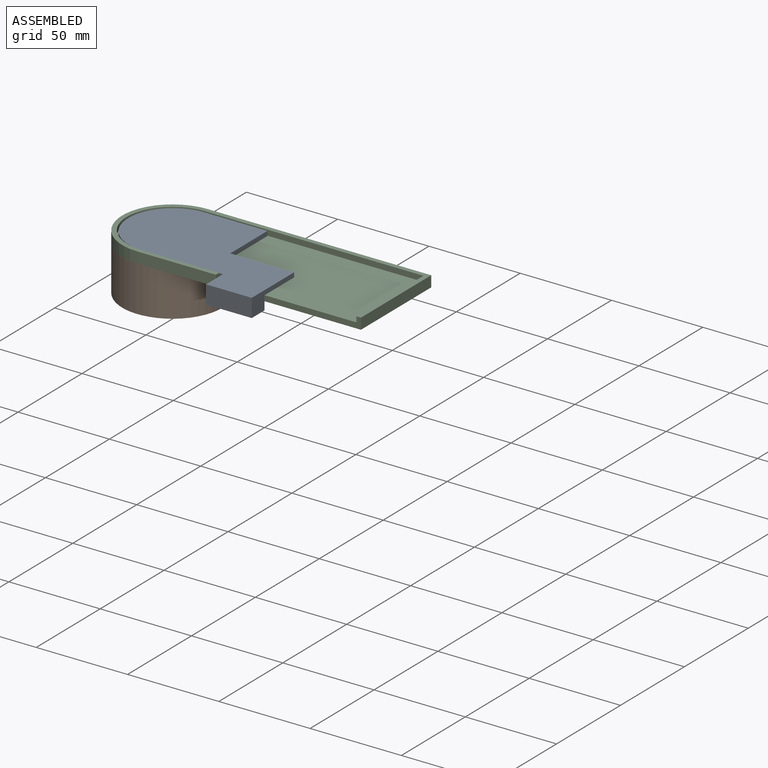
[diagram: assembled view]
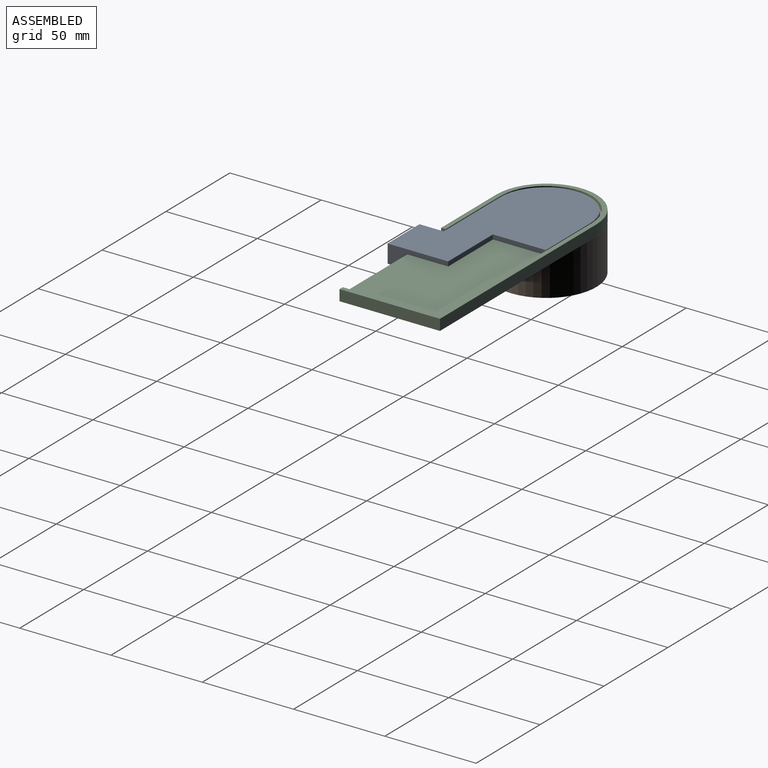
[diagram: assembled view, second angle]
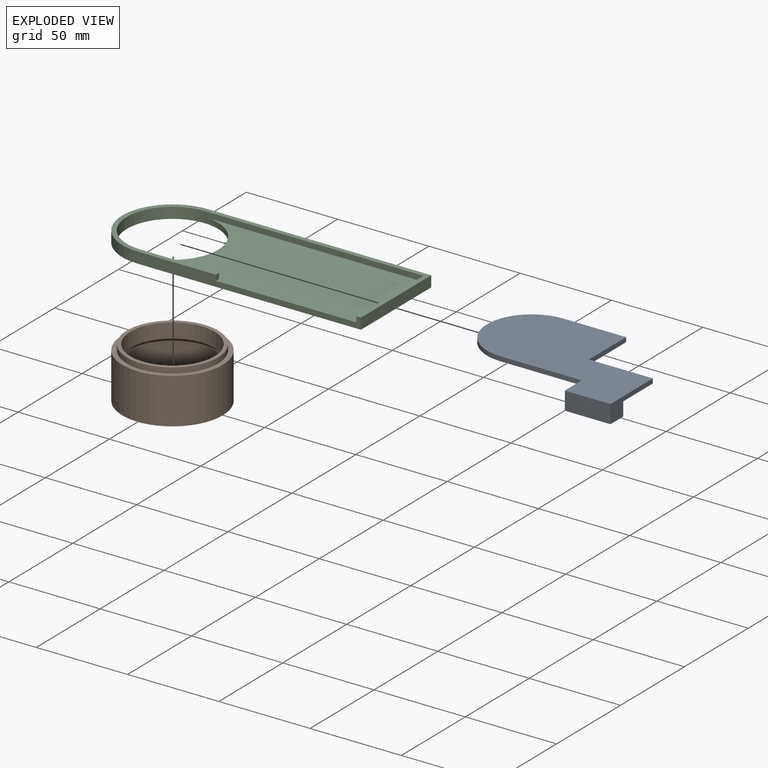
[diagram: exploded view]
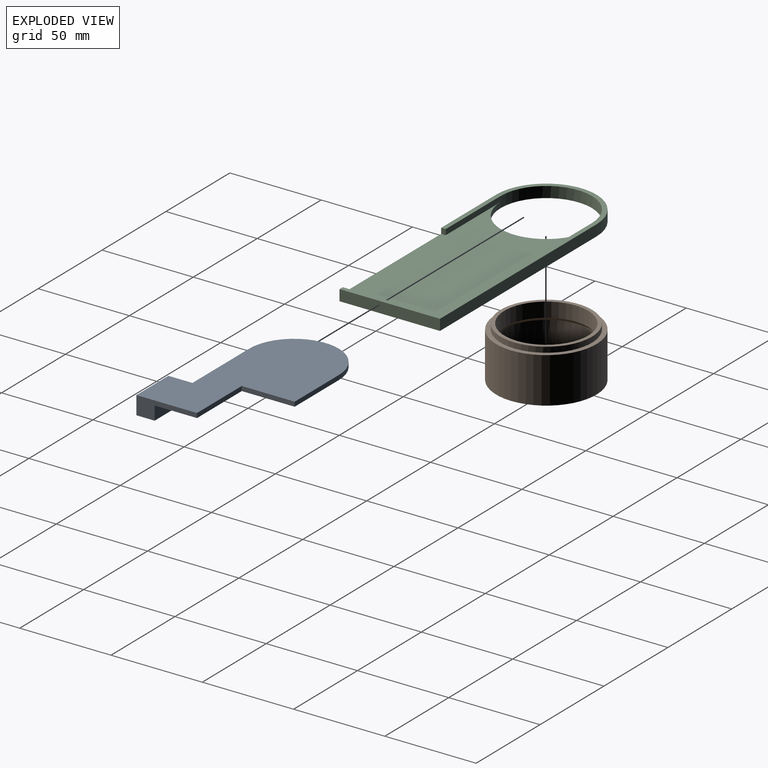
[diagram: exploded view, second angle]
ASSEMBLY  parts=3 mates=2
PART A: 12 faces, bbox 94x62.2x10 mm
  f0: plane 44.5x2.5mm, normal (0,-1,0), area 111.2mm2, adj f3,f4,f5,f8
  f1: plane 29x2.5mm, normal (1,0,0), area 72.5mm2, adj f2,f4,f5,f6
  f2: plane 34.5x2.5mm, normal (0,1,0), area 86.2mm2, adj f1,f3,f4,f5
  f3: cylinder r=24.5mm len=49mm, axis (0,0,-1), area 192.4mm2, adj f0,f2,f4,f5
  f4: plane 94x62.2mm, normal (0,0,1), area 3663.4mm2, adj f0,f1,f2,f3,f6,f7,f8,f10
  f5: plane 94x52.2mm, normal (0,0,-1), area 3413.4mm2, adj f0,f1,f2,f3,f6,f7,f8,f11
  f6: plane 35x2.5mm, normal (0,1,0), area 87.5mm2, adj f1,f4,f5,f7
  f7: plane 33.2x10mm, normal (1,0,0), area 158mm2, adj f4,f5,f6,f9,f10,f11
  f8: plane 13.2x10mm, normal (-1,0,0), area 108mm2, adj f0,f4,f5,f9,f10,f11
  f9: plane 25x10mm, normal (0,0,-1), area 250mm2, adj f7,f8,f10,f11
  f10: plane 25x10mm, normal (0,-1,0), area 250mm2, adj f4,f7,f8,f9
  f11: plane 25x7.5mm, normal (0,1,0), area 187.5mm2, adj f5,f7,f8,f9
PART B: 8 faces, bbox 55x55x28 mm
  f0: cylinder r=25mm len=50mm, axis (0,0,1), area 2827.4mm2, adj f2,f7
  f1: cylinder r=27.5mm len=55mm, axis (0,0,1), area 4319.7mm2, adj f2,f3
  f2: plane 55x55mm, normal (0,0,-1), area 412.3mm2, adj f0,f1
  f3: plane 55x55mm, normal (0,0,1), area 412.3mm2, adj f1,f4
  f4: cylinder r=25mm len=50mm, axis (0,0,1), area 471.2mm2, adj f3,f6
  f5: cylinder r=23mm len=46mm, axis (0,0,1), area 1156.1mm2, adj f6,f7
  f6: plane 50x50mm, normal (0,0,1), area 301.6mm2, adj f4,f5
  f7: cone r=23mm half-angle=45deg, axis (0,0,-1), area 426.5mm2, adj f0,f5
PART C: 12 faces, bbox 150x55x6 mm
  f0: plane 150x55mm, normal (0,0,1), area 751.2mm2, adj f1,f2,f3,f4,f6,f7,f8,f9
  f1: plane 43x3mm, normal (0,1,0), area 129mm2, adj f0,f9,f10,f11
  f2: plane 122.5x6mm, normal (0,-1,0), area 504mm2, adj f0,f3,f5,f6,f7,f10,f11
  f3: plane 55x6mm, normal (1,0,0), area 330mm2, adj f0,f2,f4,f5
  f4: plane 122.5x6mm, normal (0,1,0), area 735mm2, adj f0,f3,f5,f6
  f5: plane 150x55mm, normal (0,0,-1), area 5961.9mm2, adj f2,f3,f4,f6,f9
  f6: cylinder r=27.5mm len=55mm, axis (0,0,-1), area 518.4mm2, adj f0,f2,f4,f5
  f7: plane 52.5x3mm, normal (-1,0,0), area 157.5mm2, adj f0,f2,f8,f10
  f8: plane 120x3mm, normal (0,-1,0), area 360mm2, adj f0,f7,f9,f10
  f9: cylinder r=25mm len=50mm, axis (0,0,-1), area 706.9mm2, adj f0,f1,f5,f8,f10
  f10: plane 120x52.5mm, normal (0,0,1), area 5210.8mm2, adj f1,f2,f7,f8,f9,f11
  f11: plane 3x2.5mm, normal (1,0,0), area 7.5mm2, adj f0,f1,f2,f10
PLACE A t=(0.81,-4.87,12.72)mm
PLACE B rot(axis=(1,0,0),0deg) t=(0.31,-4.62,12.47)mm
PLACE C rot(axis=(1,0,0),0deg) t=(0.31,-4.62,12.47)mm fixed
MATE slider A.f1 <-> C.f7  axis (1,0,0) through (-12.19,5.13,16.97)mm
MATE fastened B.f0 <-> C.f6  axis (0,0,1) through (-47.19,-4.62,15.47)mm
